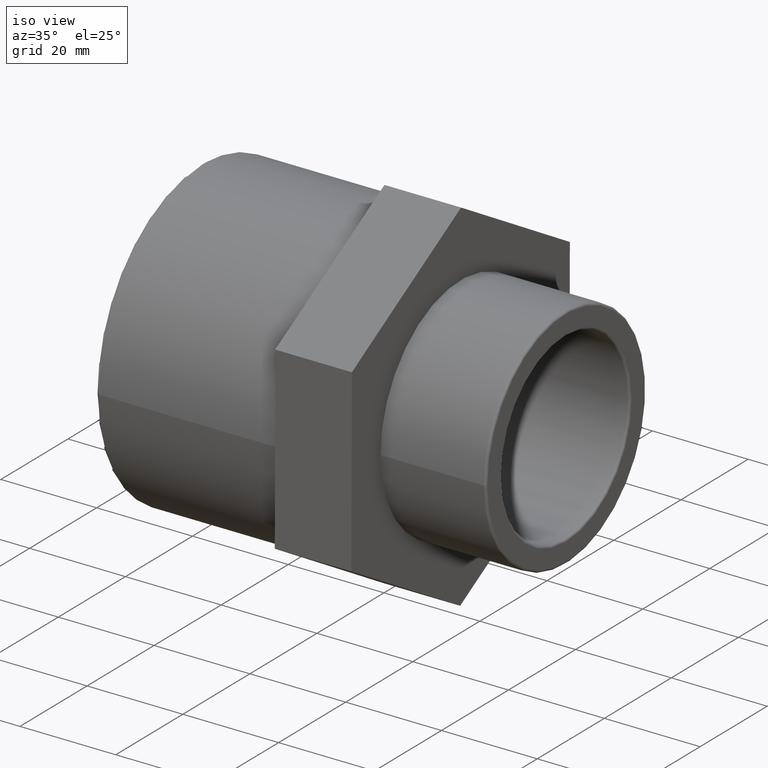
[diagram: clean part render]
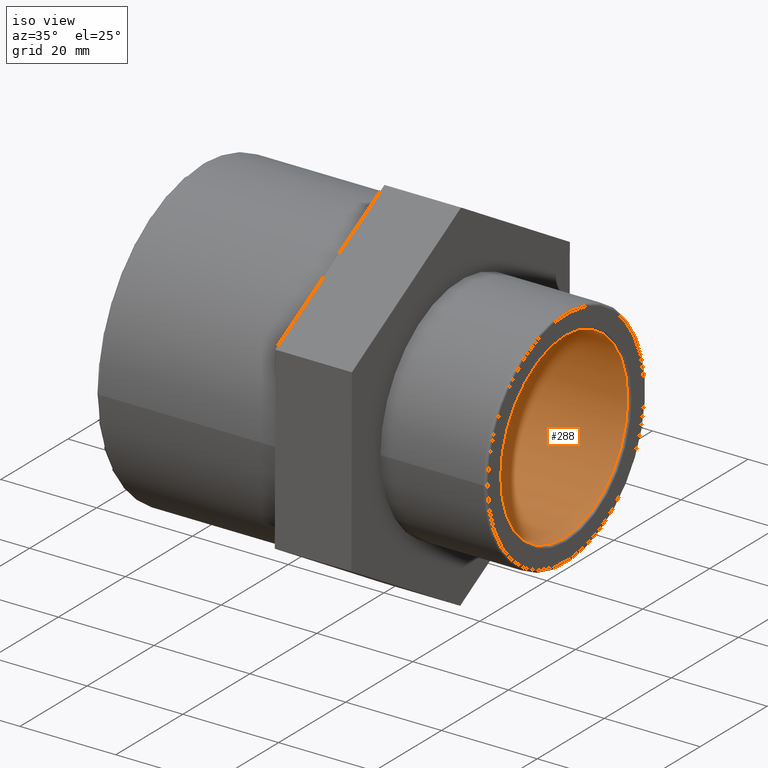
[diagram: same view with one face highlighted and labeled with its STEP entity id]
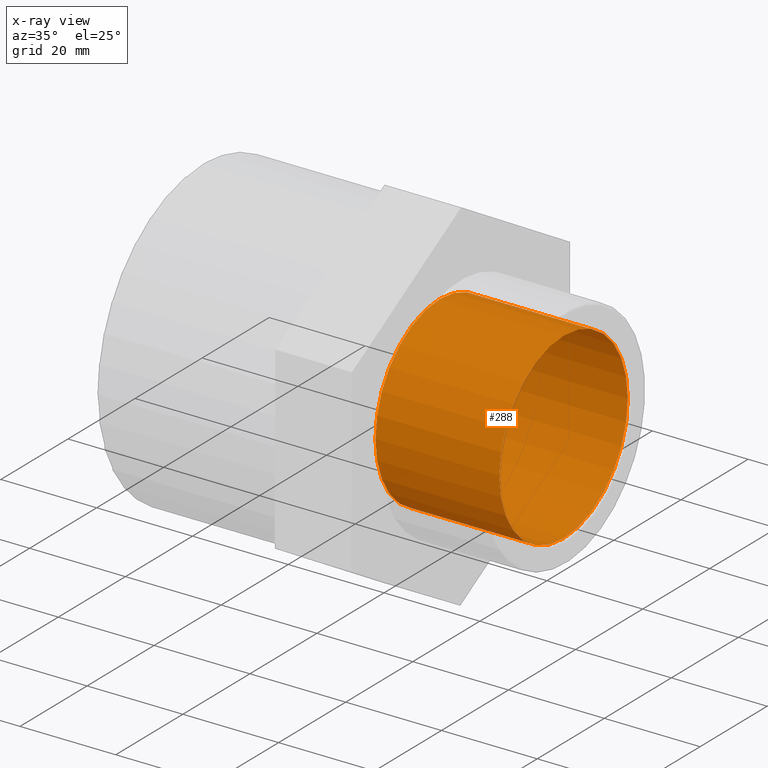
[diagram: x-ray of the same camera — body ghosted, the highlighted face saturated]
A machine part, iso view. The second image highlights one B-rep face of the part: STEP entity #288.
The next image is the same camera in x-ray: the body ghosted, the highlighted face saturated — about 1% of this face is hidden behind the body in this view.
In plain terms, the highlighted cylindrical surface (bore or boss wall) has radius 19.1212 mm, axis along (-1, -0, 0).
Its self-contained STEP definition (entity closure, byte-faithful):
#15=CYLINDRICAL_SURFACE('',#314,19.1212);
#22=FACE_BOUND('',#85,.T.);
#35=CIRCLE('',#310,19.1212);
#38=CIRCLE('',#315,19.1212);
#61=FACE_OUTER_BOUND('',#84,.T.);
#84=EDGE_LOOP('',(#232));
#85=EDGE_LOOP('',(#233));
#158=VERTEX_POINT('',#466);
#161=VERTEX_POINT('',#474);
#190=EDGE_CURVE('',#158,#158,#35,.T.);
#193=EDGE_CURVE('',#161,#161,#38,.T.);
#232=ORIENTED_EDGE('',*,*,#193,.T.);
#233=ORIENTED_EDGE('',*,*,#190,.F.);
#288=ADVANCED_FACE('',(#61,#22),#15,.F.);
#310=AXIS2_PLACEMENT_3D('',#467,#372,#373);
#314=AXIS2_PLACEMENT_3D('',#473,#380,#381);
#315=AXIS2_PLACEMENT_3D('',#475,#382,#383);
#372=DIRECTION('center_axis',(-1.,-6.73555739531044E-16,0.));
#373=DIRECTION('ref_axis',(-6.74975559131615E-16,1.,6.12323399573677E-17));
#380=DIRECTION('center_axis',(-1.,-6.73555739531044E-16,0.));
#381=DIRECTION('ref_axis',(7.105427357601E-16,-1.,0.));
#382=DIRECTION('center_axis',(-1.,-6.73555739531044E-16,0.));
#383=DIRECTION('ref_axis',(0.,0.,1.));
#466=CARTESIAN_POINT('',(37.5,-19.1212,1.17083581879282E-15));
#467=CARTESIAN_POINT('Origin',(37.5,3.22388269875541E-14,0.));
#473=CARTESIAN_POINT('Origin',(24.8,2.36846690955098E-14,0.));
#474=CARTESIAN_POINT('',(11.6,-19.1212,0.));
#475=CARTESIAN_POINT('Origin',(11.6,1.47937333337E-14,0.));